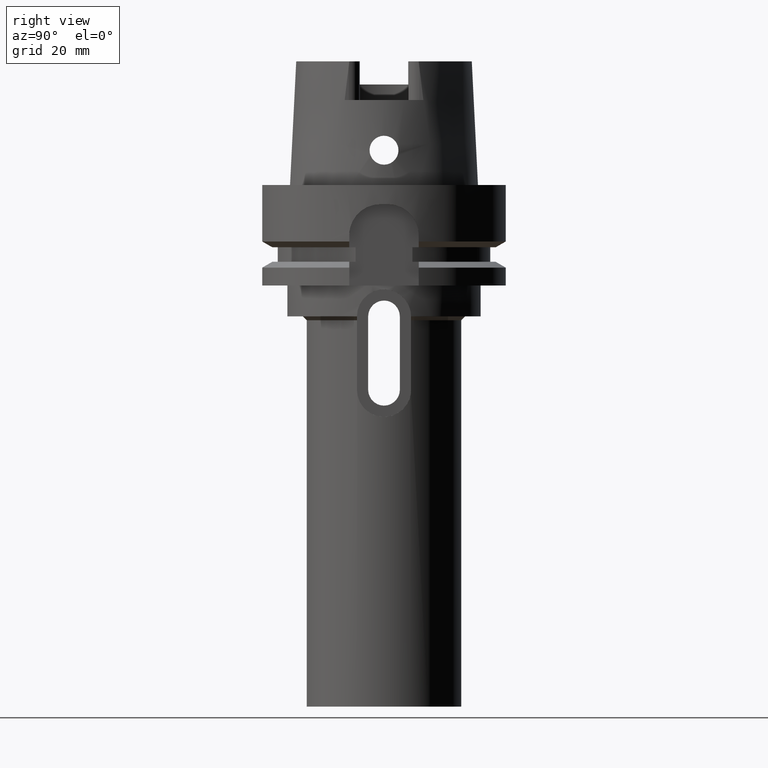
[diagram: clean part render]
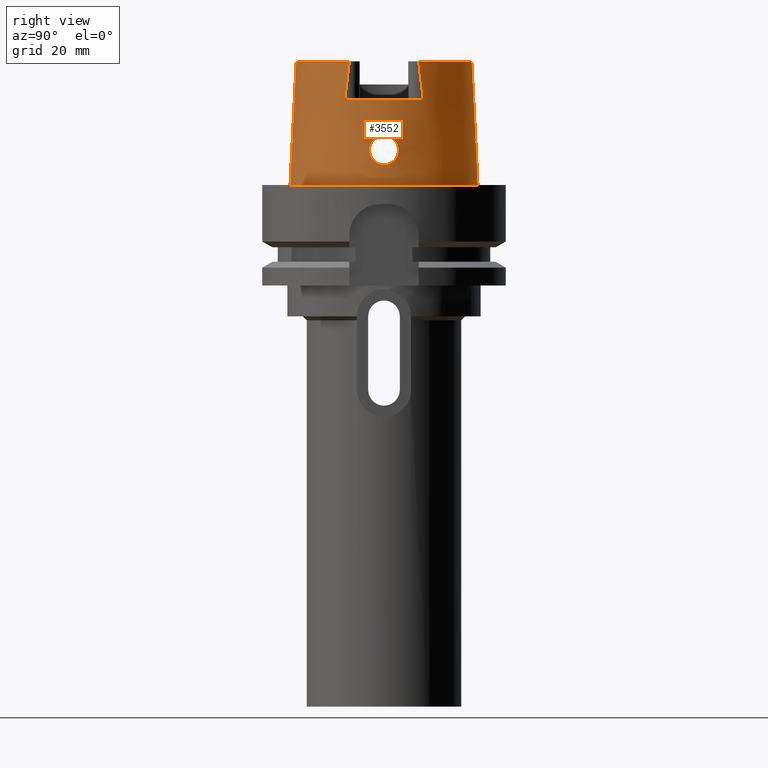
[diagram: same view with one face highlighted and labeled with its STEP entity id]
A machine part, right view. The second image highlights one B-rep face of the part: STEP entity #3552.
In plain terms, the highlighted conical surface has half-angle 2.862 deg.
Its self-contained STEP definition (entity closure, byte-faithful):
#138=CARTESIAN_POINT('',(0.E0,0.E0,3.2E1));
#139=DIRECTION('',(0.E0,0.E0,-1.E0));
#140=DIRECTION('',(9.185535885356E-1,-3.952964773285E-1,0.E0));
#141=AXIS2_PLACEMENT_3D('',#138,#139,#140);
#188=DIRECTION('',(0.E0,-4.993926899646E-2,-9.987522562738E-1));
#189=VECTOR('',#188,3.203997768114E1);
#190=CARTESIAN_POINT('',(0.E0,-2.271498175923E1,3.2E1));
#191=LINE('',#190,#189);
#253=CARTESIAN_POINT('',(2.086999605994E1,1.016757672506E1,2.2E1));
#254=CARTESIAN_POINT('',(2.086999605994E1,1.005830459398E1,2.295713692102E1));
#255=CARTESIAN_POINT('',(2.087000065514E1,9.837693899957E0,2.486635591551E1));
#256=CARTESIAN_POINT('',(2.087000361710E1,9.498301791044E0,2.771500378245E1));
#257=CARTESIAN_POINT('',(2.086999112334E1,9.267370213283E0,2.960362285993E1));
#258=CARTESIAN_POINT('',(2.086999112334E1,9.150019938386E0,3.054599642890E1));
#263=CARTESIAN_POINT('',(2.086999112334E1,9.150019938386E0,3.054599642890E1));
#264=CARTESIAN_POINT('',(2.086999112334E1,9.129930759215E0,3.070732124463E1));
#265=CARTESIAN_POINT('',(2.086958574402E1,9.090601513295E0,3.102963017657E1));
#266=CARTESIAN_POINT('',(2.086782854988E1,9.033596709148E0,3.151464210099E1));
#267=CARTESIAN_POINT('',(2.086599284936E1,8.997161997810E0,3.183814979310E1));
#268=CARTESIAN_POINT('',(2.086492401365E1,8.979173041315E0,3.2E1));
#273=DIRECTION('',(0.E0,4.993926899646E-2,-9.987522562738E-1));
#274=VECTOR('',#273,3.203997768114E1);
#275=CARTESIAN_POINT('',(0.E0,2.271498175923E1,3.2E1));
#276=LINE('',#275,#274);
#280=CARTESIAN_POINT('',(2.086492889908E1,-8.979147578632E0,3.2E1));
#281=CARTESIAN_POINT('',(2.086599795702E1,-8.997136344424E0,3.183814782322E1));
#282=CARTESIAN_POINT('',(2.086783043283E1,-9.033655383938E0,3.151458571317E1));
#283=CARTESIAN_POINT('',(2.086958081887E1,-9.090666018389E0,3.102985765238E1));
#284=CARTESIAN_POINT('',(2.087000452308E1,-9.129895372018E0,3.070684627211E1));
#285=CARTESIAN_POINT('',(2.087000462856E1,-9.149984562644E0,3.054552104080E1));
#290=CARTESIAN_POINT('',(2.087000462856E1,-9.149984562644E0,3.054552104080E1));
#291=CARTESIAN_POINT('',(2.087000462856E1,-9.267227664083E0,2.960401750860E1));
#292=CARTESIAN_POINT('',(2.087000024653E1,-9.498478388075E0,2.771533047299E1));
#293=CARTESIAN_POINT('',(2.086999219429E1,-9.837863084854E0,2.486682024033E1));
#294=CARTESIAN_POINT('',(2.087001804897E1,-1.005818307586E1,2.295730283884E1));
#295=CARTESIAN_POINT('',(2.087001804897E1,-1.016747560453E1,2.2E1));
#300=CARTESIAN_POINT('',(2.367751368058E1,-6.834353101066E-14,1.275E1));
#301=CARTESIAN_POINT('',(2.367751368058E1,-3.278615387748E-1,1.275E1));
#302=CARTESIAN_POINT('',(2.366790199220E1,-9.837141338091E-1,1.266342841380E1));
#303=CARTESIAN_POINT('',(2.362979866054E1,-1.900131469244E0,1.228324838084E1));
#304=CARTESIAN_POINT('',(2.358192971318E1,-2.687921093704E0,1.167633811463E1));
#305=CARTESIAN_POINT('',(2.354364538807E1,-3.287527923180E0,1.089180596492E1));
#306=CARTESIAN_POINT('',(2.353289234904E1,-3.665097523093E0,9.975970463817E0));
#307=CARTESIAN_POINT('',(2.356160129314E1,-3.792372775492E0,9.001704379833E0));
#308=CARTESIAN_POINT('',(2.363166774716E1,-3.665410324080E0,8.024088693924E0));
#309=CARTESIAN_POINT('',(2.373492427340E1,-3.286796496929E0,7.106498168188E0));
#310=CARTESIAN_POINT('',(2.385202683476E1,-2.684105776273E0,6.319219292275E0));
#311=CARTESIAN_POINT('',(2.396009347693E1,-1.891776334425E0,5.711817076866E0));
#312=CARTESIAN_POINT('',(2.403480103967E1,-9.764417548675E-1,5.335055767575E0));
#313=CARTESIAN_POINT('',(2.405252611747E1,-3.248874165820E-1,5.25E0));
#314=CARTESIAN_POINT('',(2.405252611747E1,0.E0,5.25E0));
#319=CARTESIAN_POINT('',(2.405252611747E1,0.E0,5.25E0));
#320=CARTESIAN_POINT('',(2.405252611747E1,3.243674059064E-1,5.25E0));
#321=CARTESIAN_POINT('',(2.403482530949E1,9.739995980904E-1,5.334965879941E0));
#322=CARTESIAN_POINT('',(2.396102041247E1,1.882176802474E0,5.707093985363E0));
#323=CARTESIAN_POINT('',(2.385381325011E1,2.673240216052E0,6.308519298625E0));
#324=CARTESIAN_POINT('',(2.373634687355E1,3.280940128527E0,7.095282943600E0));
#325=CARTESIAN_POINT('',(2.363192792344E1,3.665171494538E0,8.019917035497E0));
#326=CARTESIAN_POINT('',(2.356125846809E1,3.792995631113E0,9.006439293974E0));
#327=CARTESIAN_POINT('',(2.353280577210E1,3.662825180547E0,9.984920239600E0));
#328=CARTESIAN_POINT('',(2.354389571297E1,3.283459764276E0,1.089807465327E1));
#329=CARTESIAN_POINT('',(2.358203309440E1,2.686265789331E0,1.167735522029E1));
#330=CARTESIAN_POINT('',(2.362972091982E1,1.901387327190E0,1.228237417759E1));
#331=CARTESIAN_POINT('',(2.366786515725E1,9.851871615147E-1,1.266310492694E1));
#332=CARTESIAN_POINT('',(2.367751368058E1,3.285652884949E-1,1.275E1));
#333=CARTESIAN_POINT('',(2.367751368058E1,-6.834353101066E-14,1.275E1));
#368=CARTESIAN_POINT('',(0.E0,0.E0,2.2E1));
#369=DIRECTION('',(0.E0,0.E0,-1.E0));
#370=DIRECTION('',(8.989877876695E-1,4.379736951247E-1,0.E0));
#371=AXIS2_PLACEMENT_3D('',#368,#369,#370);
#2642=CARTESIAN_POINT('',(0.E0,0.E0,-6.821210263297E-13));
#2643=DIRECTION('',(0.E0,0.E0,1.E0));
#2644=DIRECTION('',(0.E0,-1.E0,0.E0));
#2645=AXIS2_PLACEMENT_3D('',#2642,#2643,#2644);
#2874=CARTESIAN_POINT('',(0.E0,0.E0,3.2E1));
#2875=DIRECTION('',(0.E0,0.E0,-1.E0));
#2876=DIRECTION('',(0.E0,1.E0,0.E0));
#2877=AXIS2_PLACEMENT_3D('',#2874,#2875,#2876);
#2982=CARTESIAN_POINT('',(0.E0,2.271498175923E1,3.2E1));
#2983=VERTEX_POINT('',#2982);
#2984=CARTESIAN_POINT('',(2.086492800846E1,8.979152272005E0,3.2E1));
#2985=VERTEX_POINT('',#2984);
#2996=CARTESIAN_POINT('',(2.086492800846E1,-8.979152272005E0,3.2E1));
#2997=VERTEX_POINT('',#2996);
#2998=CARTESIAN_POINT('',(0.E0,-2.271498175923E1,3.2E1));
#2999=VERTEX_POINT('',#2998);
#3002=CARTESIAN_POINT('',(0.E0,-2.431503482329E1,-3.765876499529E-13));
#3003=VERTEX_POINT('',#3002);
#3004=CARTESIAN_POINT('',(0.E0,2.431503482329E1,-6.821210263297E-13));
#3005=VERTEX_POINT('',#3004);
#3008=CARTESIAN_POINT('',(2.087E1,1.016755860605E1,2.2E1));
#3009=CARTESIAN_POINT('',(2.087E1,-1.016755860605E1,2.2E1));
#3010=VERTEX_POINT('',#3008);
#3011=VERTEX_POINT('',#3009);
#3012=VERTEX_POINT('',#258);
#3013=VERTEX_POINT('',#285);
#3014=VERTEX_POINT('',#300);
#3015=VERTEX_POINT('',#314);
#3522=CARTESIAN_POINT('',(0.E0,0.E0,1.6E1));
#3523=DIRECTION('',(0.E0,0.E0,-1.E0));
#3524=DIRECTION('',(0.E0,-1.E0,0.E0));
#3525=AXIS2_PLACEMENT_3D('',#3522,#3523,#3524);
#3526=CONICAL_SURFACE('',#3525,2.351500829126E1,2.8625E0);
#3528=ORIENTED_EDGE('',*,*,#3527,.F.);
#3530=ORIENTED_EDGE('',*,*,#3529,.T.);
#3532=ORIENTED_EDGE('',*,*,#3531,.T.);
#3534=ORIENTED_EDGE('',*,*,#3533,.F.);
#3535=ORIENTED_EDGE('',*,*,#3494,.T.);
#3537=ORIENTED_EDGE('',*,*,#3536,.F.);
#3538=ORIENTED_EDGE('',*,*,#3490,.F.);
#3539=ORIENTED_EDGE('',*,*,#3458,.F.);
#3541=ORIENTED_EDGE('',*,*,#3540,.T.);
#3543=ORIENTED_EDGE('',*,*,#3542,.T.);
#3544=EDGE_LOOP('',(#3528,#3530,#3532,#3534,#3535,#3537,#3538,#3539,#3541,
#3543));
#3545=FACE_OUTER_BOUND('',#3544,.F.);
#3547=ORIENTED_EDGE('',*,*,#3546,.T.);
#3549=ORIENTED_EDGE('',*,*,#3548,.T.);
#3550=EDGE_LOOP('',(#3547,#3549));
#3551=FACE_BOUND('',#3550,.F.);
#142=CIRCLE('',#141,2.271498175923E1);
#259=B_SPLINE_CURVE_WITH_KNOTS('',3,(#253,#254,#255,#256,#257,#258),
.UNSPECIFIED.,.F.,.F.,(4,1,1,4),(0.E0,3.333333333333E-1,6.666666666667E-1,1.E0),
.UNSPECIFIED.);
#269=B_SPLINE_CURVE_WITH_KNOTS('',3,(#263,#264,#265,#266,#267,#268),
.UNSPECIFIED.,.F.,.F.,(4,1,1,4),(0.E0,3.333333333333E-1,6.666666666667E-1,1.E0),
.UNSPECIFIED.);
#286=B_SPLINE_CURVE_WITH_KNOTS('',3,(#280,#281,#282,#283,#284,#285),
.UNSPECIFIED.,.F.,.F.,(4,1,1,4),(0.E0,3.333333333333E-1,6.666666666667E-1,1.E0),
.UNSPECIFIED.);
#296=B_SPLINE_CURVE_WITH_KNOTS('',3,(#290,#291,#292,#293,#294,#295),
.UNSPECIFIED.,.F.,.F.,(4,1,1,4),(0.E0,3.333333333333E-1,6.666666666667E-1,1.E0),
.UNSPECIFIED.);
#315=B_SPLINE_CURVE_WITH_KNOTS('',3,(#300,#301,#302,#303,#304,#305,#306,#307,
#308,#309,#310,#311,#312,#313,#314),.UNSPECIFIED.,.F.,.F.,(4,1,1,1,1,1,1,1,1,1,
1,1,4),(0.E0,8.333333333333E-2,1.666666666667E-1,2.5E-1,3.333333333333E-1,
4.166666666667E-1,5.E-1,5.833333333333E-1,6.666666666667E-1,7.5E-1,
8.333333333333E-1,9.166666666667E-1,1.E0),.UNSPECIFIED.);
#334=B_SPLINE_CURVE_WITH_KNOTS('',3,(#319,#320,#321,#322,#323,#324,#325,#326,
#327,#328,#329,#330,#331,#332,#333),.UNSPECIFIED.,.F.,.F.,(4,1,1,1,1,1,1,1,1,1,
1,1,4),(0.E0,8.333333333333E-2,1.666666666667E-1,2.5E-1,3.333333333333E-1,
4.166666666667E-1,5.E-1,5.833333333333E-1,6.666666666667E-1,7.5E-1,
8.333333333333E-1,9.166666666667E-1,1.E0),.UNSPECIFIED.);
#372=CIRCLE('',#371,2.321499834175E1);
#2646=CIRCLE('',#2645,2.431503482329E1);
#2878=CIRCLE('',#2877,2.271498175923E1);
#3458=EDGE_CURVE('',#2997,#2999,#142,.T.);
#3490=EDGE_CURVE('',#2999,#3003,#191,.T.);
#3494=EDGE_CURVE('',#2983,#3005,#276,.T.);
#3527=EDGE_CURVE('',#3010,#3011,#372,.T.);
#3529=EDGE_CURVE('',#3010,#3012,#259,.T.);
#3531=EDGE_CURVE('',#3012,#2985,#269,.T.);
#3533=EDGE_CURVE('',#2983,#2985,#2878,.T.);
#3536=EDGE_CURVE('',#3003,#3005,#2646,.T.);
#3540=EDGE_CURVE('',#2997,#3013,#286,.T.);
#3542=EDGE_CURVE('',#3013,#3011,#296,.T.);
#3546=EDGE_CURVE('',#3014,#3015,#315,.T.);
#3548=EDGE_CURVE('',#3015,#3014,#334,.T.);
#3552=ADVANCED_FACE('',(#3545,#3551),#3526,.T.);